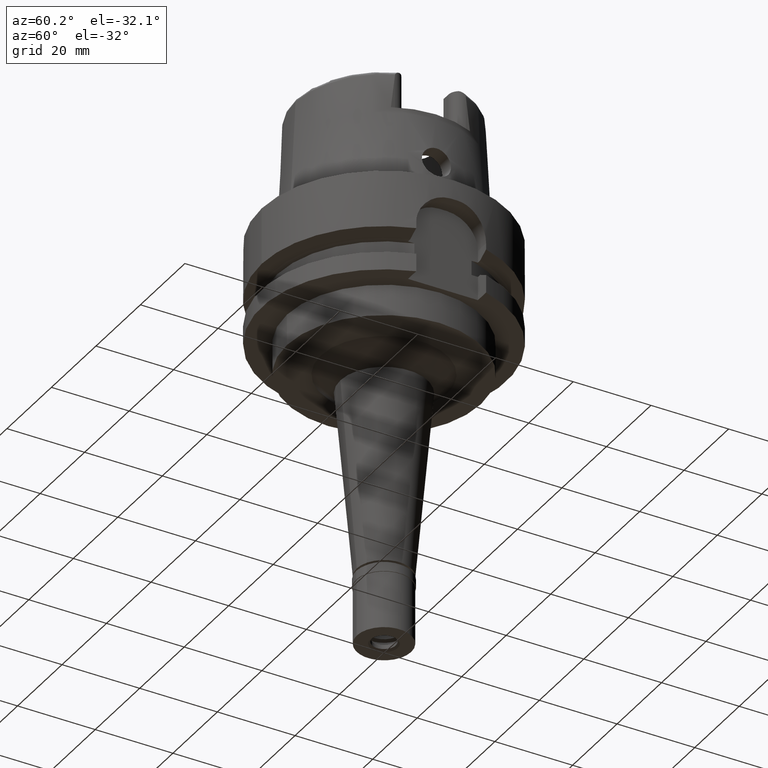
[diagram: clean part render]
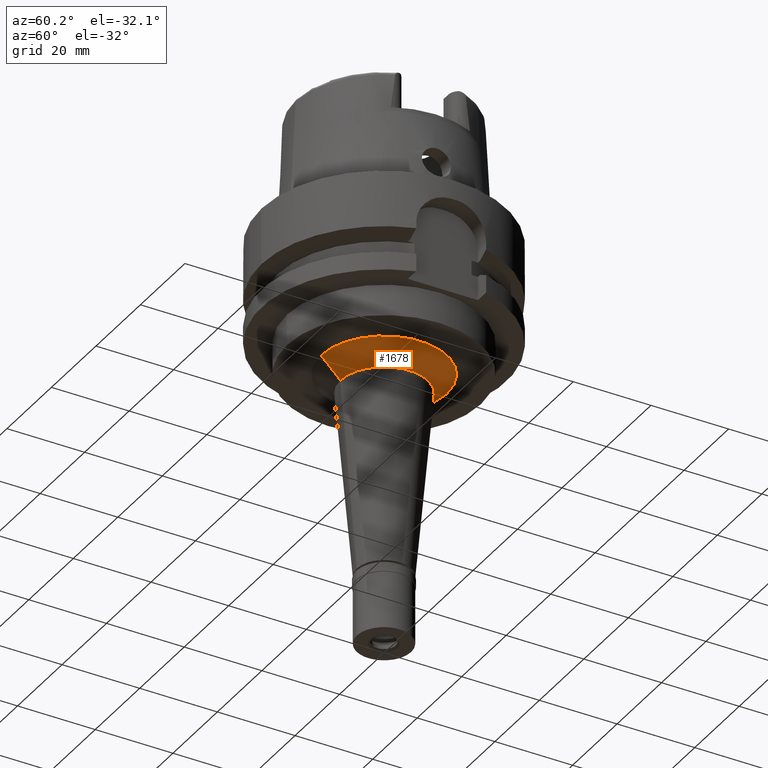
[diagram: same view with one face highlighted and labeled with its STEP entity id]
A machine part, auxiliary view. The second image highlights one B-rep face of the part: STEP entity #1678.
In plain terms, the highlighted conical surface has half-angle 45 deg.
Its self-contained STEP definition (entity closure, byte-faithful):
#30 = CARTESIAN_POINT ( 'NONE',  ( 0.0000000000000000000, 0.0000000000000000000, -34.00000000000000000 ) ) ;
#49 = VERTEX_POINT ( 'NONE', #1600 ) ;
#122 = AXIS2_PLACEMENT_3D ( 'NONE', #30, #4212, #822 ) ;
#629 = VERTEX_POINT ( 'NONE', #5380 ) ;
#679 = AXIS2_PLACEMENT_3D ( 'NONE', #692, #1958, #2374 ) ;
#692 = CARTESIAN_POINT ( 'NONE',  ( 0.0000000000000000000, 0.0000000000000000000, -39.00000000000000000 ) ) ;
#740 = DIRECTION ( 'NONE',  ( 0.0000000000000000000, -0.7071067811864980568, -0.7071067811865969777 ) ) ;
#822 = DIRECTION ( 'NONE',  ( 0.0000000000000000000, 1.000000000000000000, 0.0000000000000000000 ) ) ;
#938 = VERTEX_POINT ( 'NONE', #3623 ) ;
#1600 = CARTESIAN_POINT ( 'NONE',  ( 0.0000000000000000000, -16.22570244829999808, -34.00000000000000000 ) ) ;
#1678 = ADVANCED_FACE ( 'NONE', ( #4859 ), #1833, .T. ) ;
#1819 = ORIENTED_EDGE ( 'NONE', *, *, #3342, .T. ) ;
#1833 = CONICAL_SURFACE ( 'NONE', #4994, 13.72570244829999808, 0.7853981633972997312 ) ;
#1879 = CIRCLE ( 'NONE', #122, 16.22570244829999808 ) ;
#1958 = DIRECTION ( 'NONE',  ( 0.0000000000000000000, 0.0000000000000000000, 1.000000000000000000 ) ) ;
#2211 = EDGE_LOOP ( 'NONE', ( #3835, #2404, #1819, #4832 ) ) ;
#2319 = LINE ( 'NONE', #3998, #4716 ) ;
#2370 = DIRECTION ( 'NONE',  ( 0.0000000000000000000, 0.7071067811864980568, -0.7071067811865969777 ) ) ;
#2374 = DIRECTION ( 'NONE',  ( 0.0000000000000000000, -1.000000000000000000, 0.0000000000000000000 ) ) ;
#2391 = LINE ( 'NONE', #3609, #2879 ) ;
#2404 = ORIENTED_EDGE ( 'NONE', *, *, #2475, .T. ) ;
#2475 = EDGE_CURVE ( 'NONE', #49, #4416, #2391, .T. ) ;
#2879 = VECTOR ( 'NONE', #2370, 1000.000000000000000 ) ;
#3264 = EDGE_CURVE ( 'NONE', #938, #629, #2319, .T. ) ;
#3342 = EDGE_CURVE ( 'NONE', #4416, #629, #5421, .T. ) ;
#3609 = CARTESIAN_POINT ( 'NONE',  ( 0.0000000000000000000, -16.22570244829999808, -34.00000000000000000 ) ) ;
#3623 = CARTESIAN_POINT ( 'NONE',  ( 0.0000000000000000000, 16.22570244829999808, -34.00000000000000000 ) ) ;
#3696 = CARTESIAN_POINT ( 'NONE',  ( 0.0000000000000000000, -11.22570244829999986, -39.00000000000000000 ) ) ;
#3702 = DIRECTION ( 'NONE',  ( 0.0000000000000000000, 1.000000000000000000, 0.0000000000000000000 ) ) ;
#3835 = ORIENTED_EDGE ( 'NONE', *, *, #4196, .T. ) ;
#3998 = CARTESIAN_POINT ( 'NONE',  ( 0.0000000000000000000, 16.22570244829999808, -34.00000000000000000 ) ) ;
#4011 = DIRECTION ( 'NONE',  ( 0.0000000000000000000, 0.0000000000000000000, 1.000000000000000000 ) ) ;
#4196 = EDGE_CURVE ( 'NONE', #938, #49, #1879, .T. ) ;
#4212 = DIRECTION ( 'NONE',  ( 0.0000000000000000000, 0.0000000000000000000, -1.000000000000000000 ) ) ;
#4416 = VERTEX_POINT ( 'NONE', #3696 ) ;
#4716 = VECTOR ( 'NONE', #740, 1000.000000000000000 ) ;
#4809 = CARTESIAN_POINT ( 'NONE',  ( 0.0000000000000000000, 0.0000000000000000000, -36.50000000000000000 ) ) ;
#4832 = ORIENTED_EDGE ( 'NONE', *, *, #3264, .F. ) ;
#4859 = FACE_OUTER_BOUND ( 'NONE', #2211, .T. ) ;
#4994 = AXIS2_PLACEMENT_3D ( 'NONE', #4809, #4011, #3702 ) ;
#5380 = CARTESIAN_POINT ( 'NONE',  ( 0.0000000000000000000, 11.22570244829999986, -39.00000000000000000 ) ) ;
#5421 = CIRCLE ( 'NONE', #679, 11.22570244829999986 ) ;